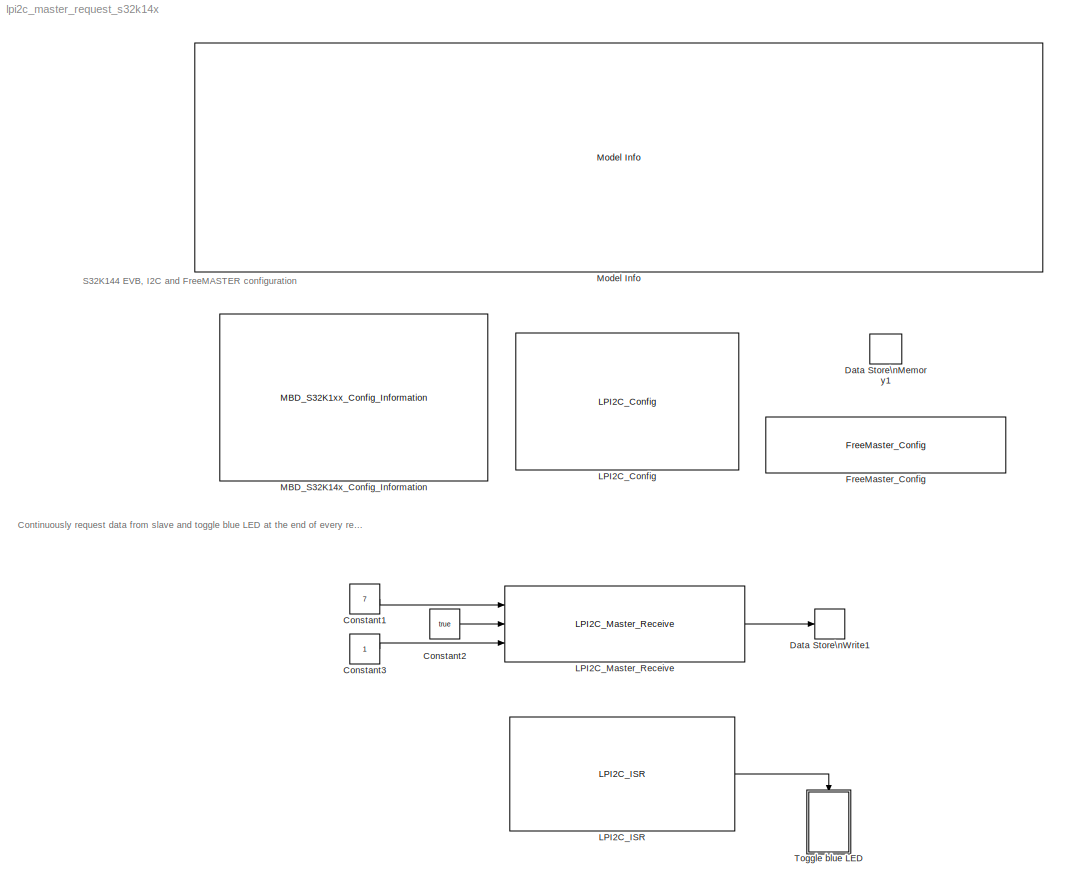
MODEL lpi2c_master_request_s32k14x
KIND model
CONFIG InitFcn = mbd_s32k_consistency_checks(bdroot(gcs));
BLOCK [Constant] Constant1
  OutDataTypeStr = uint16
  SID = 37
  Value = 7
BLOCK [Constant] Constant2
  OutDataTypeStr = boolean
  SID = 38
  Value = true
BLOCK [Constant] Constant3
  OutDataTypeStr = uint32
  SID = 39
BLOCK [DataStoreMemory] Data Store\nMemory1
  DataStoreName = recv
  OutDataTypeStr = uint8
  ReadBeforeWriteMsg = warning
  SID = 18
  ShowAdditionalParam = off
  WriteAfterReadMsg = warning
  WriteAfterWriteMsg = warning
BLOCK [DataStoreWrite] Data Store\nWrite1
  DataStoreName = recv
  Ports = [1]
  SID = 40
BLOCK [Reference] FreeMaster_Config  REF=mbd_s32k1xx_ec_toolbox/Utility Blocks/FreeMaster_Config
  Ports = []
  SID = 9
  SourceBlock = mbd_s32k1xx_ec_toolbox/Utility Blocks/FreeMaster_Config
  SourceType = fm_s32k_config
  baudrate = 115200
  comm_buffer_size = 255
  comm_buffer_size_auto = on
  comm_rqueue_size = 32
  comm_rqueue_size_default = on
  interface = LPUART1
  isr_prio = 9
  max_rec_vars = 8
  max_scope_vars = 8
  mode = Short Interrupt
  rec_buff_size = 1024
  rec_timebase = 0
  rec_timebase_unit = seconds
  rxd = PTC6: [LPUART1_RX | Receive]
  show_adv_opts = on
  txd = PTC7: [LPUART1_TX | Transmit]
  use_recorder = on
  use_scope = on
BLOCK [Reference] LPI2C_Config  REF=mbd_s32k1xx_ec_toolbox/Communication Blocks/I2C Blocks/LPI2C_Config
  Ports = []
  Priority = 1
  SID = 2
  SourceBlock = mbd_s32k1xx_ec_toolbox/Communication Blocks/I2C Blocks/LPI2C_Config
  SourceType = lpi2c_s32k_config
  addr = 1
  bdr = 100000
  instance = 0
  is10bitaddr = off
  mode = Master
  opmode = Standard (up to 100 kbit/s)
  scl = PTA3: [LPI2C0_SCL | LPI2C Clock I/O]
  sda = PTA2: [LPI2C0_SDA | LPI2C Data I/O]
BLOCK [Reference] LPI2C_ISR  REF=mbd_s32k1xx_ec_toolbox/Communication Blocks/I2C Blocks/LPI2C_ISR
  Ports = [0, 1]
  SID = 11
  SourceBlock = mbd_s32k1xx_ec_toolbox/Communication Blocks/I2C Blocks/LPI2C_ISR
  SourceType = lpi2c_s32k_isr
  instance = 0
  masterarblost = off
  masterendtransfer = on
  masterfifoerr = off
  masternack = off
  masterrx = off
  mastertx = off
  mode = Master
  rxfull = off
  rxreq = off
  stop = off
  txempty = off
  txreq = off
BLOCK [Reference] LPI2C_Master_Receive  REF=mbd_s32k1xx_ec_toolbox/Communication Blocks/I2C Blocks/LPI2C_Master_Receive
  Ports = [3, 1]
  SID = 41
  SourceBlock = mbd_s32k1xx_ec_toolbox/Communication Blocks/I2C Blocks/LPI2C_Master_Receive
  SourceType = lpi2c_s32k_master_receive
  Timeout = 50
  instance = 0
  is10bit = off
  xfermode = Blocking
BLOCK [Reference] MBD_S32K14x_Config_Information  REF=mbd_s32k1xx_ec_toolbox/MBD_S32K1xx_Config_Information
  ADC_PcrCheckEnDis = on
  AMMCLIB_PcrCheckEnDis = on
  CMP_PcrCheckEnDis = on
  CSEc_PcrCheckEnDis = on
  ConfigParams_PcrCheckEnDis = on
  FM_PcrCheckEnDis = on
  FTM_Dual_Edge_Inputs_PcrCheckEnDis = on
  FTM_Hall_Sensor_Inputs_PcrCheckEnDis = on
  FTM_Input_Edge_Inputs_PcrCheckEnDis = on
  FTM_PWM_PcrCheckEnDis = on
  FTM_Quadrature_Inputs_PcrCheckEnDis = on
  FlexCAN_PcrCheckEnDis = on
  FlexIO_PcrCheckEnDis = on
  GPIO_InputPcrCheckEnDis = on
  GPIO_OutputPcrCheckEnDis = on
  LIN_PcrCheckEnDis = on
  LPI2C_PcrCheckEnDis = on
  LPSPI_PcrCheckEnDis = on
  LPTMR_PcrCheckEnDis = on
  LPUART_PcrCheckEnDis = on
  ModelRef_PcrCheckEnDis = on
  PDB0_PcrCheckEnDis = on
  PIT_PcrCheckEnDis = on
  Ports = []
  Priority = 1
  Profile_PcrCheckEnDis = on
  RTC_PcrCheckEnDis = on
  SBC_PcrCheckEnDis = on
  SID = 1
  SourceBlock = mbd_s32k1xx_ec_toolbox/MBD_S32K1xx_Config_Information
  SourceType = MBDTBX_EC_S32K
  WDOG_PcrCheckEnDis = on
  config_params = []
  disp_str = Target : S32K144-48KB_SRAM\nPackage : 100-pin\nSystem clock : 80 MHz\nXTAL clock : External 8 MHz\nCompiler : GreenHills Multi\nTarget Type : FLASH\nDownload Code after build : off\nStep Tick Interrupt Priority : 15
  ds_import_enable = on
  eDMA_PcrCheckEnDis = on
  gcc_target_assemble_opts = -mcpu=cortex-m4 -mthumb -mfloat-abi=hard -mfpu=fpv4-sp-d16 -g
  gcc_target_compile_opts = -mcpu=cortex-m4 -mthumb -mfloat-abi=hard -mfpu=fpv4-sp-d16 -O1 -g -gstrict-dwarf
  gcc_target_default_lcf = on
  gcc_target_link_opts = -mcpu=cortex-m4 -mthumb -mfloat-abi=hard -mfpu=fpv4-sp-d16
  gcc_target_user_lcf = S32K144_48_flash.ld
  ghs_target_assemble_opts = -cpu=cortexm4f -fpu=vfpv4_d16
  ghs_target_compile_opts = -cpu=cortexm4f -thumb -DARM_MATH_CM4 -fpu=vfpv4_d16 -fsingle -Ogeneral -Wundef -Wimplicit-int -Wshadow -Wtrigraphs --no_commons --gnu_asm -gnu99 -gdwarf-2 -G
  ghs_target_default_lcf = on
  ghs_target_link_opts = -cpu=cortexm4f -thumb -fpu=vfpv4_d16
  ghs_target_user_lcf = S32K144_48_flash.ld
  iar_target_assemble_opts = --cpu Cortex-M4F --thumb --fpu VFPv4_sp
  iar_target_compile_opts = --cpu=Cortex-M4F --thumb --fpu=VFPv4_sp -Ol -e --debug --dlib_config normal
  iar_target_default_lcf = on
  iar_target_link_opts = --no_exceptions --vfe --inline
  iar_target_user_lcf = S32K144_48_flash.icf
  mbdt_ver = 0
  mcu_steptick_prio = 15
  mcu_steptick_timer = LPIT Channel 0
  mcu_system_clock_freq = 80
  mcu_target_name = S32K144
  mcu_target_package = 64-LQFP
  mcu_target_sram_size = 48KB
  mcu_xtal_freq = External 8
  pil_download_enable = off
  pil_download_rate = 57600
  pil_opensda_drive = Custom
  pil_opensda_drive_custom = D
  pil_uart_instance = 1
  pil_uart_rx = PTC6: [LPUART1_RX | Receive]
  pil_uart_tx = PTC7: [LPUART1_TX | Transmit]
  rbl_com_port = Custom
  rbl_com_port_custom = COM1
  rbl_download_enable = on
  rbl_download_interface = OpenSDA
  rbl_restart_request = off
  rbl_start_delay = 5000000
  target_compiler = GCC
  target_memory = FLASH
BLOCK [Reference] Model Info  REF=simulink/Model-Wide\nUtilities/Model Info
  DisplayStringWithTags = %<ModelName>\n\n%<Description>
  Frame = on
  HorizontalTextAlignment = Center
  LeftAlignmentValue = 0.5
  MaskDisplayString = lpi2c_master_request_s32k14x\\n\\nThis example demonstrates a simple I2C master request.\\n\\nHardware requirements:\\n- 2 S32K144 EVB - one running this model (master_request) and another running slave_send.\\n- 2 wires to connect SDA and SCL signals like this:\\nMASTER    -    SLAVE       - Signal\\nJ1.1          -    J1.1          - SDA\\nJ1.3          -    J1.3          - SCL\\n\\nValidation:\...<+485ch>
  Ports = []
  SID = 44
  SourceBlock = simulink/Model-Wide\nUtilities/Model Info
  SourceProductBaseCode = SL
  SourceProductName = Simulink
  SourceType = CMBlock
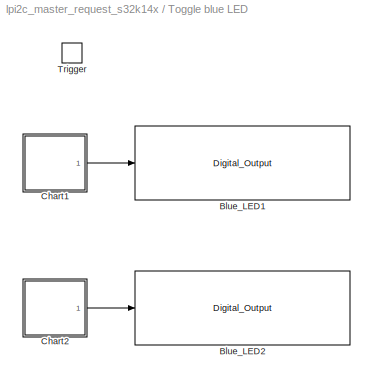
BLOCK [SubSystem] Toggle blue LED
  Ports = [0, 0, 0, 1]
  RequestExecContextInheritance = off
  SID = 12
  Variant = off
BLOCK [Reference] Toggle blue LED/Blue_LED1  REF=mbd_s32k1xx_ec_toolbox/GPIO Blocks/Digital_Output
  Commented = on
  Ports = [1]
  SID = 24
  SourceBlock = mbd_s32k1xx_ec_toolbox/GPIO Blocks/Digital_Output
  SourceType = gpio_s32k_output
  drive_strength = Low
  gpio_pin = PTD0: [PTD0 | Port D I/O]
  init_val = Low
BLOCK [Reference] Toggle blue LED/Blue_LED2  REF=mbd_s32k1xx_ec_toolbox/GPIO Blocks/Digital_Output
  Ports = [1]
  SID = 45
  SourceBlock = mbd_s32k1xx_ec_toolbox/GPIO Blocks/Digital_Output
  SourceType = gpio_s32k_output
  drive_strength = Low
  gpio_pin = PTE8: [PTE8 | Port E I/O]
  init_val = Low
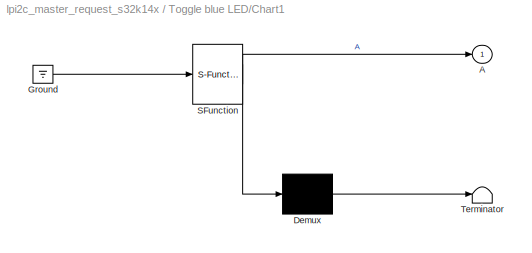
BLOCK [SubSystem] Toggle blue LED/Chart1
  Commented = on
  ErrorFcn = Stateflow.Translate.translate
  PermitHierarchicalResolution = ExplicitOnly
  Ports = [0, 1]
  RequestExecContextInheritance = off
  SFBlockType = Chart
  SID = 25
  TreatAsAtomicUnit = on
  Variant = off
BLOCK [Outport] Toggle blue LED/Chart1/ A
  IconDisplay = Port number
  SID = 25::6
BLOCK [Demux] Toggle blue LED/Chart1/ Demux 
  Outputs = 1
  Ports = [1, 1]
  SID = 25::40
BLOCK [Ground] Toggle blue LED/Chart1/ Ground 
  SID = 25::42
BLOCK [S-Function] Toggle blue LED/Chart1/ SFunction 
  EnableBusSupport = on
  FunctionName = sf_sfun
  PortCounts = [1 2]
  Ports = [1, 2]
  SFcnIsStateOwnerBlock = off
  SFunctionDeploymentMode = off
  SID = 25::39
  Tag = Stateflow S-Function lpi2c_master_request_s32k14x 3
BLOCK [Terminator] Toggle blue LED/Chart1/ Terminator 
  SID = 25::41
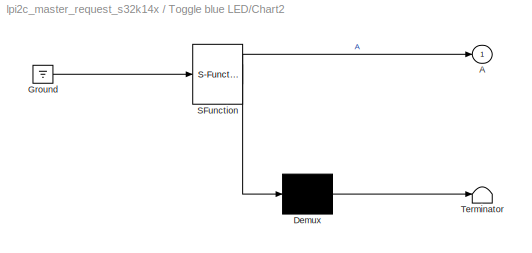
BLOCK [SubSystem] Toggle blue LED/Chart2
  ErrorFcn = Stateflow.Translate.translate
  PermitHierarchicalResolution = ExplicitOnly
  Ports = [0, 1]
  RequestExecContextInheritance = off
  SFBlockType = Chart
  SID = 46
  TreatAsAtomicUnit = on
  Variant = off
BLOCK [Outport] Toggle blue LED/Chart2/ A
  IconDisplay = Port number
  SID = 46::6
BLOCK [Demux] Toggle blue LED/Chart2/ Demux 
  Outputs = 1
  Ports = [1, 1]
  SID = 46::40
BLOCK [Ground] Toggle blue LED/Chart2/ Ground 
  SID = 46::42
BLOCK [S-Function] Toggle blue LED/Chart2/ SFunction 
  EnableBusSupport = on
  FunctionName = sf_sfun
  PortCounts = [1 2]
  Ports = [1, 2]
  SFcnIsStateOwnerBlock = off
  SFunctionDeploymentMode = off
  SID = 46::39
  Tag = Stateflow S-Function lpi2c_master_request_s32k14x 1
BLOCK [Terminator] Toggle blue LED/Chart2/ Terminator 
  SID = 46::41
BLOCK [TriggerPort] Toggle blue LED/Trigger
  PortDimensions = 1
  Ports = []
  SID = 13
  StatesWhenEnabling = held
  TriggerType = function-call
  VariantControl = Variant
ANNOTATION (root): Continuously request data from slave and toggle blue LED at the end of every request
ANNOTATION (root): S32K144 EVB, I2C and FreeMASTER configuration
LINE Constant1:1 -> LPI2C_Master_Receive:1
LINE Constant2:1 -> LPI2C_Master_Receive:2
LINE Constant3:1 -> LPI2C_Master_Receive:3
LINE LPI2C_ISR:1 -> Toggle blue LED:trigger
LINE LPI2C_Master_Receive:1 -> Data Store\nWrite1:1
LINE Toggle blue LED/Chart1/ Demux :1 -> Toggle blue LED/Chart1/ Terminator :1
LINE Toggle blue LED/Chart1/ Ground :1 -> Toggle blue LED/Chart1/ SFunction :1
LINE Toggle blue LED/Chart1/ SFunction :1 -> Toggle blue LED/Chart1/ Demux :1
LINE Toggle blue LED/Chart1/ SFunction :2 -> Toggle blue LED/Chart1/ A:1
LINE Toggle blue LED/Chart1:1 -> Toggle blue LED/Blue_LED1:1
LINE Toggle blue LED/Chart2/ Demux :1 -> Toggle blue LED/Chart2/ Terminator :1
LINE Toggle blue LED/Chart2/ Ground :1 -> Toggle blue LED/Chart2/ SFunction :1
LINE Toggle blue LED/Chart2/ SFunction :1 -> Toggle blue LED/Chart2/ Demux :1
LINE Toggle blue LED/Chart2/ SFunction :2 -> Toggle blue LED/Chart2/ A:1
LINE Toggle blue LED/Chart2:1 -> Toggle blue LED/Blue_LED2:1
CHART Toggle blue LED/Chart2 states=2 transitions=3
  STATE_LABEL 'A'
  STATE_LABEL 'A1'
CHART Toggle blue LED/Chart1 states=2 transitions=3
  STATE_LABEL 'A'
  STATE_LABEL 'A1'
